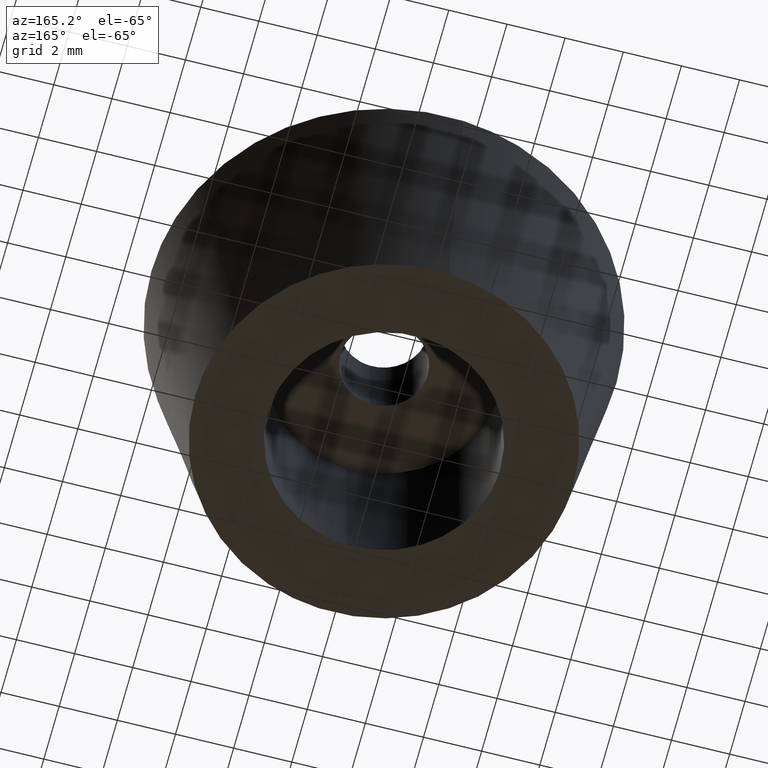
[diagram: clean part render]
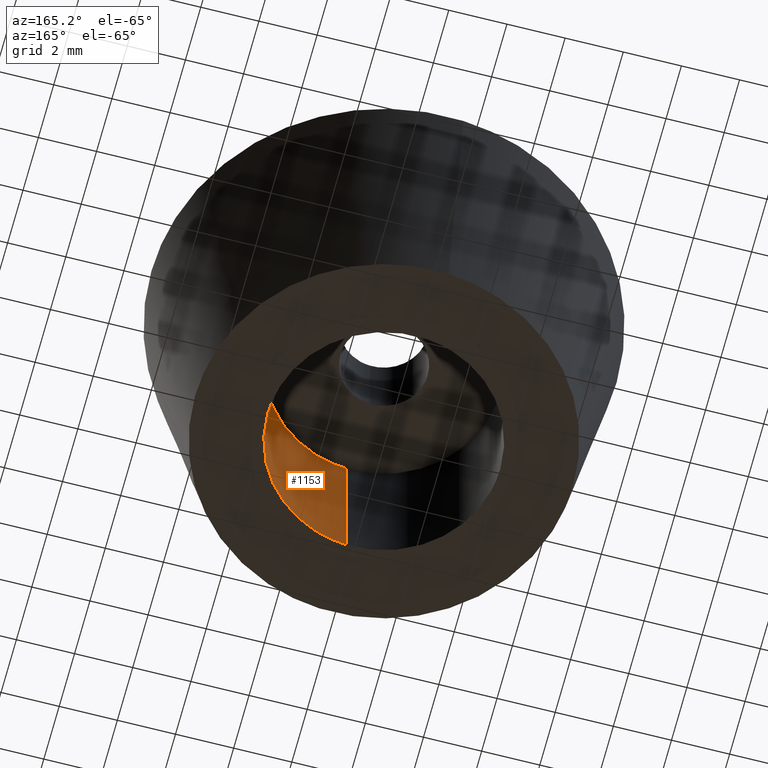
[diagram: same view with one face highlighted and labeled with its STEP entity id]
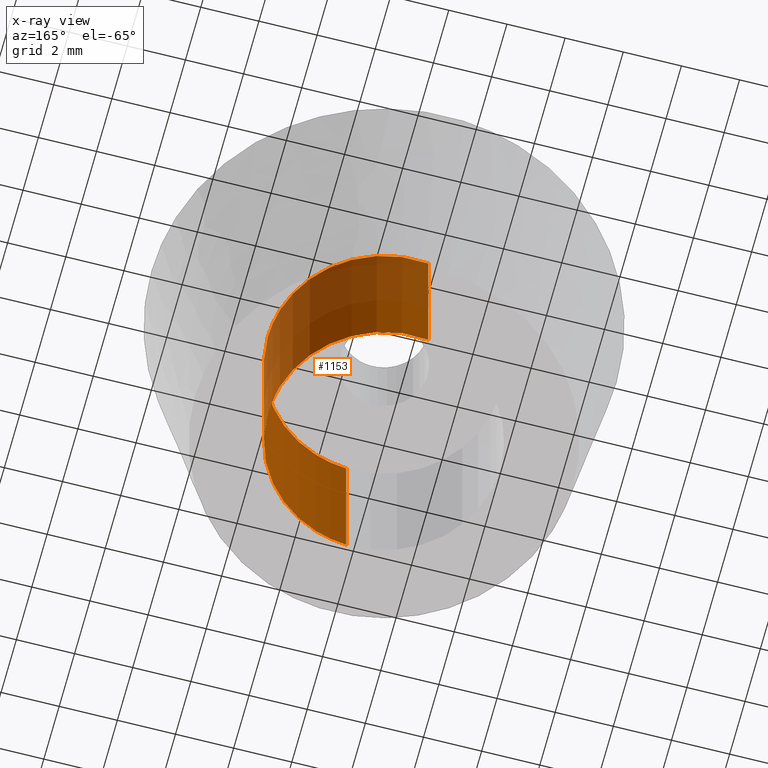
[diagram: x-ray of the same camera — body ghosted, the highlighted face saturated]
A machine part, auxiliary view. The second image highlights one B-rep face of the part: STEP entity #1153.
The next image is the same camera in x-ray: the body ghosted, the highlighted face saturated — about 39% of this face is hidden behind the body in this view.
In plain terms, the highlighted face is a freeform B-spline surface patch.
Its self-contained STEP definition (entity closure, byte-faithful):
#1051=CARTESIAN_POINT('',(-0.472136938627034,3.972038105454666,6.150000000000001));
#1052=CARTESIAN_POINT('',(-0.358458914551911,3.985550461794422,6.150000000000001));
#1053=CARTESIAN_POINT('',(-0.244194158139428,3.992539193687467,6.150000000000001));
#1054=CARTESIAN_POINT('',(3.748345035548039,4.236733351826894,6.150000000000002));
#1055=CARTESIAN_POINT('',(3.992539193687467,0.244194158139428,6.150000000000001));
#1056=CARTESIAN_POINT('',(4.236733351826894,-3.748345035548039,6.150000000000002));
#1057=CARTESIAN_POINT('',(0.244194158139428,-3.992539193687467,6.150000000000001));
#1058=CARTESIAN_POINT('',(-0.472136938627034,3.972038105454666,-0.153750000000000));
#1059=CARTESIAN_POINT('',(-0.358458914551911,3.985550461794422,-0.153750000000001));
#1060=CARTESIAN_POINT('',(-0.244194158139428,3.992539193687467,-0.153750000000001));
#1061=CARTESIAN_POINT('',(3.748345035548039,4.236733351826894,-0.153750000000000));
#1062=CARTESIAN_POINT('',(3.992539193687467,0.244194158139428,-0.153750000000001));
#1063=CARTESIAN_POINT('',(4.236733351826894,-3.748345035548039,-0.153750000000000));
#1064=CARTESIAN_POINT('',(0.244194158139428,-3.992539193687467,-0.153750000000001));
#1072=(BOUNDED_SURFACE()B_SPLINE_SURFACE(2,1,((#1051,#1058),(#1052,#1059),(#1053,#1060),(#1054,#1061),(#1055,#1062),(#1056,#1063),(#1057,#1064)),.UNSPECIFIED.,.F.,.F.,.U.)B_SPLINE_SURFACE_WITH_KNOTS((3,2,2,3),(2,2),(0.0,0.265096679918781,6.892513677888299,13.519930675857820),(0.0,6.303750000000003),.UNSPECIFIED.)GEOMETRIC_REPRESENTATION_ITEM()RATIONAL_B_SPLINE_SURFACE(((0.977505800795127,0.977505800795127),(0.988284271247462,0.988284271247462),(1.0,1.0),(0.707106781186548,0.707106781186548),(1.0,1.0),(0.707106781186548,0.707106781186548),(1.0,1.0)))REPRESENTATION_ITEM('')SURFACE());
#1073=CARTESIAN_POINT('',(-0.472135276174555,3.972038303061637,5.999999999999996));
#1074=VERTEX_POINT('',#1073);
#1075=CARTESIAN_POINT('',(4.0,0.0,6.0));
#1076=VERTEX_POINT('',#1075);
#1077=CARTESIAN_POINT('',(-0.472135276174555,3.972038303061638,5.999999999999996));
#1078=CARTESIAN_POINT('',(-0.236895638593835,4.0,6.0));
#1079=CARTESIAN_POINT('',(0.0,4.0,6.0));
#1080=CARTESIAN_POINT('',(4.000000000000000,4.000000000000000,6.0));
#1081=CARTESIAN_POINT('',(4.0,0.0,6.0));
#1089=(BOUNDED_CURVE()B_SPLINE_CURVE(2,(#1077,#1078,#1079,#1080,#1081),.UNSPECIFIED.,.F.,.U.)B_SPLINE_CURVE_WITH_KNOTS((3,2,3),(0.229562544250081,0.250000000000000,0.500000000000000),.UNSPECIFIED.)CURVE()GEOMETRIC_REPRESENTATION_ITEM()RATIONAL_B_SPLINE_CURVE((0.956026892830324,0.976056031204195,1.0,0.707106781186548,1.0))REPRESENTATION_ITEM(''));
#1090=EDGE_CURVE('',#1074,#1076,#1089,.T.);
#1091=ORIENTED_EDGE('',*,*,#1090,.F.);
#1092=CARTESIAN_POINT('',(-0.472135296181069,3.972038300683576,5.394914E-016));
#1093=VERTEX_POINT('',#1092);
#1094=CARTESIAN_POINT('',(-0.472135276174555,3.972038303061637,5.999999999999996));
#1095=CARTESIAN_POINT('',(-0.472135296181069,3.972038300683576,5.394914E-016));
#1096=QUASI_UNIFORM_CURVE('',1,(#1094,#1095),.UNSPECIFIED.,.F.,.U.);
#1097=EDGE_CURVE('',#1074,#1093,#1096,.T.);
#1098=ORIENTED_EDGE('',*,*,#1097,.T.);
#1099=CARTESIAN_POINT('',(4.0,0.0,0.0));
#1100=VERTEX_POINT('',#1099);
#1101=CARTESIAN_POINT('',(-0.472135296181069,3.972038300683576,5.394914E-016));
#1102=CARTESIAN_POINT('',(-0.236895648702844,4.000000000000001,0.0));
#1103=CARTESIAN_POINT('',(0.0,4.0,0.0));
#1104=CARTESIAN_POINT('',(4.000000000000000,4.000000000000000,0.0));
#1105=CARTESIAN_POINT('',(4.0,0.0,0.0));
#1113=(BOUNDED_CURVE()B_SPLINE_CURVE(2,(#1101,#1102,#1103,#1104,#1105),.UNSPECIFIED.,.F.,.U.)B_SPLINE_CURVE_WITH_KNOTS((3,2,3),(0.229562543398839,0.250000000000000,0.500000000000000),.UNSPECIFIED.)CURVE()GEOMETRIC_REPRESENTATION_ITEM()RATIONAL_B_SPLINE_CURVE((0.956026891161853,0.976056030206903,1.0,0.707106781186548,1.0))REPRESENTATION_ITEM(''));
#1114=EDGE_CURVE('',#1093,#1100,#1113,.T.);
#1115=ORIENTED_EDGE('',*,*,#1114,.T.);
#1116=CARTESIAN_POINT('',(0.244191539836600,-3.992539353828005,-5.134781E-016));
#1117=VERTEX_POINT('',#1116);
#1118=CARTESIAN_POINT('',(4.0,0.0,0.0));
#1119=CARTESIAN_POINT('',(4.0,-3.762826739890751,0.0));
#1120=CARTESIAN_POINT('',(0.244191539836600,-3.992539353828005,-5.134781E-016));
#1128=(BOUNDED_CURVE()B_SPLINE_CURVE(2,(#1118,#1119,#1120),.UNSPECIFIED.,.F.,.U.)B_SPLINE_CURVE_WITH_KNOTS((3,3),(0.500000000000000,0.739333075397974),.UNSPECIFIED.)CURVE()GEOMETRIC_REPRESENTATION_ITEM()RATIONAL_B_SPLINE_CURVE((1.0,0.719603860712659,0.976072284188181))REPRESENTATION_ITEM(''));
#1129=EDGE_CURVE('',#1100,#1117,#1128,.T.);
#1130=ORIENTED_EDGE('',*,*,#1129,.T.);
#1131=CARTESIAN_POINT('',(0.244191507870781,-3.992539355783076,6.000000000000009));
#1132=VERTEX_POINT('',#1131);
#1133=CARTESIAN_POINT('',(0.244191507870781,-3.992539355783076,6.000000000000009));
#1134=CARTESIAN_POINT('',(0.244191539836600,-3.992539353828005,-5.134781E-016));
#1135=QUASI_UNIFORM_CURVE('',1,(#1133,#1134),.UNSPECIFIED.,.F.,.U.);
#1136=EDGE_CURVE('',#1132,#1117,#1135,.T.);
#1137=ORIENTED_EDGE('',*,*,#1136,.F.);
#1138=CARTESIAN_POINT('',(4.0,0.0,6.0));
#1139=CARTESIAN_POINT('',(4.000000000000000,-3.762826770073696,6.0));
#1140=CARTESIAN_POINT('',(0.244191507870781,-3.992539355783075,6.000000000000009));
#1148=(BOUNDED_CURVE()B_SPLINE_CURVE(2,(#1138,#1139,#1140),.UNSPECIFIED.,.F.,.U.)B_SPLINE_CURVE_WITH_KNOTS((3,3),(0.500000000000000,0.739333076779450),.UNSPECIFIED.)CURVE()GEOMETRIC_REPRESENTATION_ITEM()RATIONAL_B_SPLINE_CURVE((1.0,0.719603859094159,0.976072287148952))REPRESENTATION_ITEM(''));
#1149=EDGE_CURVE('',#1076,#1132,#1148,.T.);
#1150=ORIENTED_EDGE('',*,*,#1149,.F.);
#1151=EDGE_LOOP('',(#1091,#1098,#1115,#1130,#1137,#1150));
#1152=FACE_OUTER_BOUND('',#1151,.T.);
#1153=ADVANCED_FACE('',(#1152),#1072,.F.);